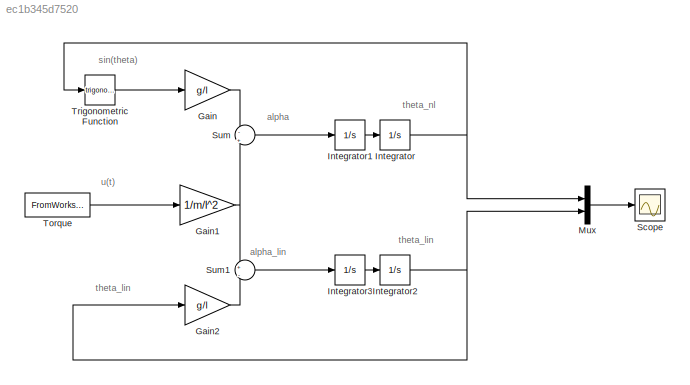
MODEL slx_ec1b345d7520
KIND model
CONFIG AbsTol = auto
CONFIG FixedStep = auto
CONFIG MaxStep = 5e-2
CONFIG MinStep = auto
CONFIG RelTol = 1e-5
CONFIG SampleTimeConstraint = Unconstrained
CONFIG Solver = ode45
CONFIG SolverMode = Auto
CONFIG SolverName = ode45
CONFIG StartTime = t(1)
CONFIG StopTime = t(end)
BLOCK [Gain] Gain
  Gain = g/l
  OutDataTypeStr = Inherit: Inherit via internal rule
  ParamDataTypeStr = Inherit: Inherit via internal rule
  SaturateOnIntegerOverflow = off
BLOCK [Gain] Gain1
  Gain = 1/m/l^2
  OutDataTypeStr = Inherit: Inherit via internal rule
  ParamDataTypeStr = Inherit: Inherit via internal rule
  SaturateOnIntegerOverflow = off
BLOCK [Gain] Gain2
  Gain = g/l
  OutDataTypeStr = Inherit: Inherit via internal rule
  ParamDataTypeStr = Inherit: Inherit via internal rule
  SaturateOnIntegerOverflow = off
BLOCK [Integrator] Integrator
  InitialCondition = theta0
  Ports = [1, 1]
BLOCK [Integrator] Integrator1
  InitialCondition = w0
  Ports = [1, 1]
BLOCK [Integrator] Integrator2
  InitialCondition = theta0
  Ports = [1, 1]
BLOCK [Integrator] Integrator3
  InitialCondition = w0
  Ports = [1, 1]
BLOCK [Mux] Mux
  DisplayOption = bar
  Inputs = 2
  Ports = [2, 1]
BLOCK [Scope] Scope
  DataFormat = StructureWithTime
  Floating = off
  LimitDataPoints = off
  NumInputPorts = 1
  Ports = [1]
  SaveName = simx
  SaveToWorkspace = on
BLOCK [Sum] Sum
  IconShape = round
  InputSameDT = off
  Inputs = -|+
  OutDataTypeStr = Inherit: Inherit via internal rule
  Ports = [2, 1]
  SaturateOnIntegerOverflow = off
BLOCK [Sum] Sum1
  IconShape = round
  InputSameDT = off
  Inputs = +|-
  OutDataTypeStr = Inherit: Inherit via internal rule
  Ports = [2, 1]
  SaturateOnIntegerOverflow = off
BLOCK [FromWorkspace] Torque
  SampleTime = 0
  VariableName = [t,u]
  ZeroCross = on
BLOCK [Trigonometry] Trigonometric Function
  Ports = [1, 1]
ANNOTATION (root): alpha
ANNOTATION (root): alpha_lin
ANNOTATION (root): sin(theta)
ANNOTATION (root): theta_lin
ANNOTATION (root): theta_nl
ANNOTATION (root): u(t)
NET Gain1:1 -> Sum1:1, Sum:2
LINE Gain2:1 -> Sum1:2
LINE Gain:1 -> Sum:1
LINE Integrator1:1 -> Integrator:1
NET Integrator2:1 -> Gain2:1, Mux:2
LINE Integrator3:1 -> Integrator2:1
NET Integrator:1 -> Mux:1, Trigonometric Function:1
LINE Mux:1 -> Scope:1
LINE Sum1:1 -> Integrator3:1
LINE Sum:1 -> Integrator1:1
LINE Torque:1 -> Gain1:1
LINE Trigonometric Function:1 -> Gain:1
note: NET lines group one-source signal fan-out (src -> all destinations, sorted); 1:1 wires keep LINE
